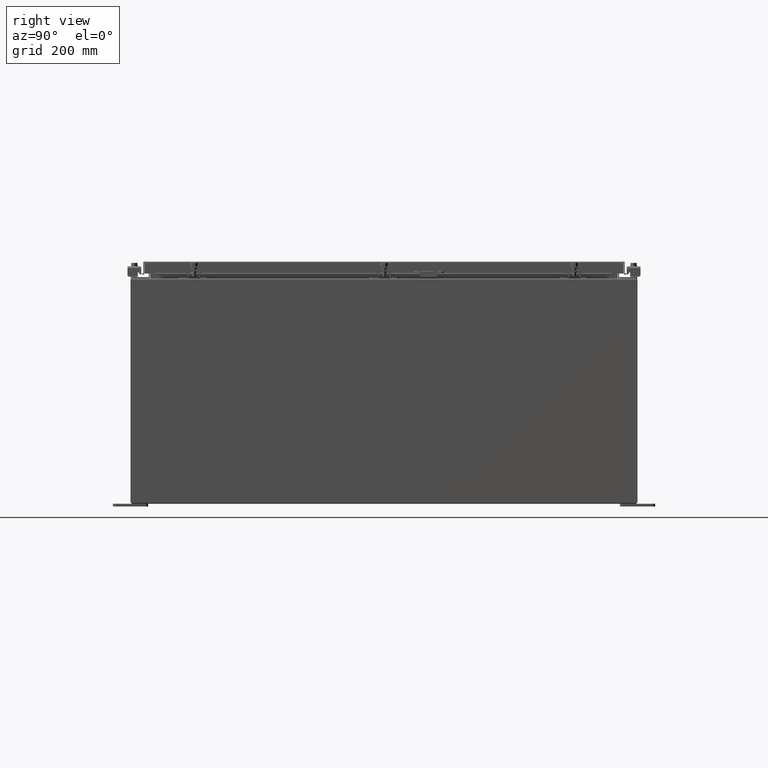
[diagram: clean part render]
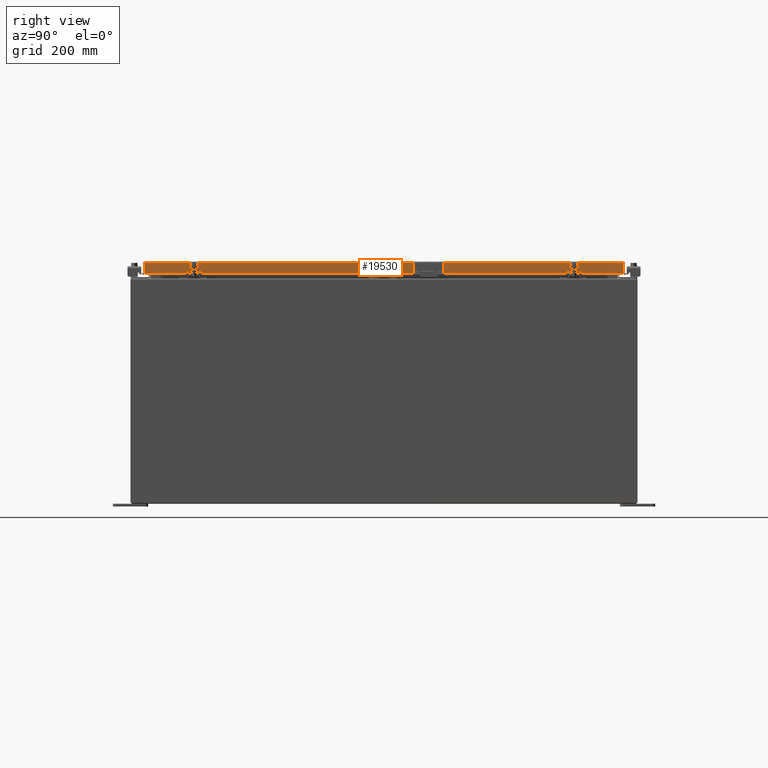
[diagram: same view with one face highlighted and labeled with its STEP entity id]
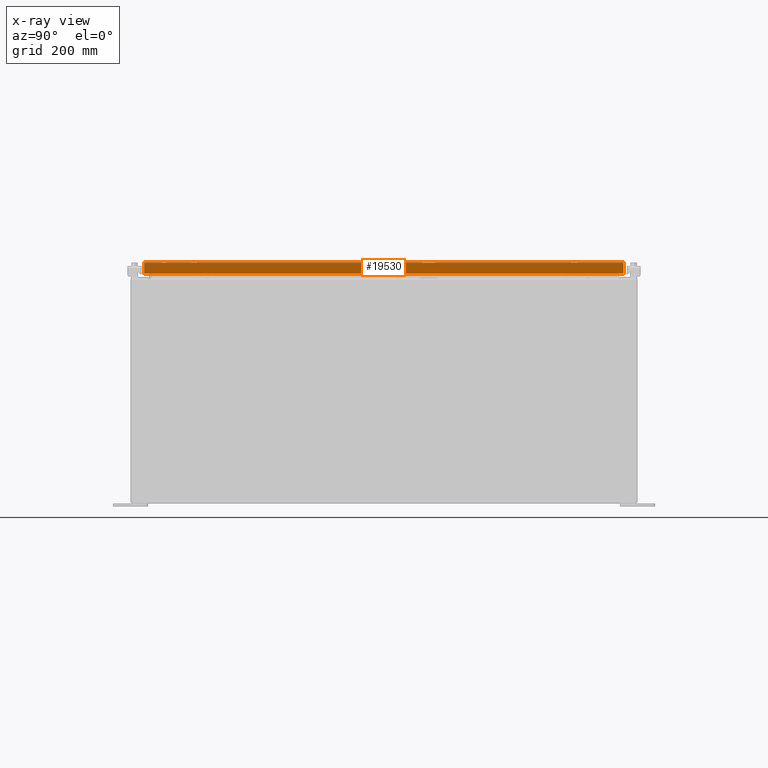
[diagram: x-ray of the same camera — body ghosted, the highlighted face saturated]
A machine part, right view. The second image highlights one B-rep face of the part: STEP entity #19530.
The next image is the same camera in x-ray: the body ghosted, the highlighted face saturated — about 0% of this face is hidden behind the body in this view.
In plain terms, the highlighted planar face has unit normal (1, 0, 0).
Its self-contained STEP definition (entity closure, byte-faithful):
#1 = VECTOR ( 'NONE', #17143, 39.37007874015748100 ) ;
#1006 = CARTESIAN_POINT ( 'NONE',  ( 14.07799999999998700, -16.25515786437626500, -0.8500000000000020900 ) ) ;
#3220 = LINE ( 'NONE', #13329, #29126 ) ;
#3268 = DIRECTION ( 'NONE',  ( 1.000000000000000000, 0.0000000000000000000, 2.818880942772360100E-015 ) ) ;
#4140 = LINE ( 'NONE', #16880, #12102 ) ;
#7742 = EDGE_CURVE ( 'NONE', #37162, #33478, #4140, .T. ) ;
#8000 = LINE ( 'NONE', #33007, #42862 ) ;
#9503 = DIRECTION ( 'NONE',  ( -2.818880942772360500E-015, -6.982962677686269100E-015, 1.000000000000000000 ) ) ;
#10232 = DIRECTION ( 'NONE',  ( 0.0000000000000000000, -1.000000000000000000, 0.0000000000000000000 ) ) ;
#10453 = ORIENTED_EDGE ( 'NONE', *, *, #19529, .F. ) ;
#10744 = CARTESIAN_POINT ( 'NONE',  ( 14.07799999999998700, 16.25515786437627600, -0.8500000000000020900 ) ) ;
#11152 = FACE_OUTER_BOUND ( 'NONE', #20532, .T. ) ;
#12102 = VECTOR ( 'NONE', #10232, 39.37007874015748100 ) ;
#12993 = ORIENTED_EDGE ( 'NONE', *, *, #28974, .F. ) ;
#13329 = CARTESIAN_POINT ( 'NONE',  ( 14.07799999999999600, -17.09400000000000100, -0.8499999999999999800 ) ) ;
#13789 = VERTEX_POINT ( 'NONE', #23809 ) ;
#13943 = CARTESIAN_POINT ( 'NONE',  ( 14.07799999999999600, 17.00515786437627600, -0.8499999999999999800 ) ) ;
#15782 = VERTEX_POINT ( 'NONE', #13943 ) ;
#16205 = VERTEX_POINT ( 'NONE', #33550 ) ;
#16880 = CARTESIAN_POINT ( 'NONE',  ( 14.07799999999998700, 16.25515786437628000, -0.8500000000000020900 ) ) ;
#17143 = DIRECTION ( 'NONE',  ( 0.0000000000000000000, -1.000000000000000000, 0.0000000000000000000 ) ) ;
#18185 = VECTOR ( 'NONE', #32429, 39.37007874015748100 ) ;
#18991 = CARTESIAN_POINT ( 'NONE',  ( 14.07799999999999400, -17.00515786437626900, -0.07470000000000015500 ) ) ;
#19037 = ORIENTED_EDGE ( 'NONE', *, *, #42975, .T. ) ;
#19529 = EDGE_CURVE ( 'NONE', #15782, #37162, #3220, .T. ) ;
#19530 = ADVANCED_FACE ( 'NONE', ( #11152 ), #33557, .T. ) ;
#20532 = EDGE_LOOP ( 'NONE', ( #21390, #12993, #21398, #10453, #19037, #20642 ) ) ;
#20642 = ORIENTED_EDGE ( 'NONE', *, *, #25481, .T. ) ;
#21390 = ORIENTED_EDGE ( 'NONE', *, *, #40653, .F. ) ;
#21398 = ORIENTED_EDGE ( 'NONE', *, *, #7742, .F. ) ;
#23454 = VECTOR ( 'NONE', #37415, 39.37007874015748100 ) ;
#23528 = CARTESIAN_POINT ( 'NONE',  ( 14.07799999999999400, 0.0000000000000000000, 3.933861110876539400E-014 ) ) ;
#23809 = CARTESIAN_POINT ( 'NONE',  ( 14.07799999999999400, -17.00515786437626900, -0.08770000000000026400 ) ) ;
#25481 = EDGE_CURVE ( 'NONE', #16205, #13789, #33802, .T. ) ;
#26708 = CARTESIAN_POINT ( 'NONE',  ( 14.07799999999999600, -17.00515786437626500, -0.8499999999999999800 ) ) ;
#26771 = DIRECTION ( 'NONE',  ( 0.0000000000000000000, -1.000000000000000000, 0.0000000000000000000 ) ) ;
#26908 = DIRECTION ( 'NONE',  ( 2.818880942772360100E-015, 0.0000000000000000000, -1.000000000000000000 ) ) ;
#27970 = AXIS2_PLACEMENT_3D ( 'NONE', #23528, #3268, #26908 ) ;
#28218 = LINE ( 'NONE', #18991, #18185 ) ;
#28974 = EDGE_CURVE ( 'NONE', #33478, #35609, #33479, .T. ) ;
#29126 = VECTOR ( 'NONE', #26771, 39.37007874015748100 ) ;
#32429 = DIRECTION ( 'NONE',  ( -2.818880942772360500E-015, -6.982962677686269100E-015, 1.000000000000000000 ) ) ;
#33007 = CARTESIAN_POINT ( 'NONE',  ( 14.07799999999999400, 17.00515786437627200, 1.595399228299929700E-013 ) ) ;
#33478 = VERTEX_POINT ( 'NONE', #1006 ) ;
#33479 = LINE ( 'NONE', #34168, #23454 ) ;
#33550 = CARTESIAN_POINT ( 'NONE',  ( 14.07799999999999400, 17.00515786437626900, -0.08770000000000026400 ) ) ;
#33557 = PLANE ( 'NONE',  #27970 ) ;
#33802 = LINE ( 'NONE', #40732, #1 ) ;
#34168 = CARTESIAN_POINT ( 'NONE',  ( 14.07799999999999600, -17.09400000000000100, -0.8499999999999999800 ) ) ;
#35609 = VERTEX_POINT ( 'NONE', #26708 ) ;
#37162 = VERTEX_POINT ( 'NONE', #10744 ) ;
#37415 = DIRECTION ( 'NONE',  ( 0.0000000000000000000, -1.000000000000000000, 0.0000000000000000000 ) ) ;
#40653 = EDGE_CURVE ( 'NONE', #35609, #13789, #28218, .T. ) ;
#40732 = CARTESIAN_POINT ( 'NONE',  ( 14.07799999999999400, 0.0000000000000000000, -0.08770000000000026400 ) ) ;
#42862 = VECTOR ( 'NONE', #9503, 39.37007874015748100 ) ;
#42975 = EDGE_CURVE ( 'NONE', #15782, #16205, #8000, .T. ) ;